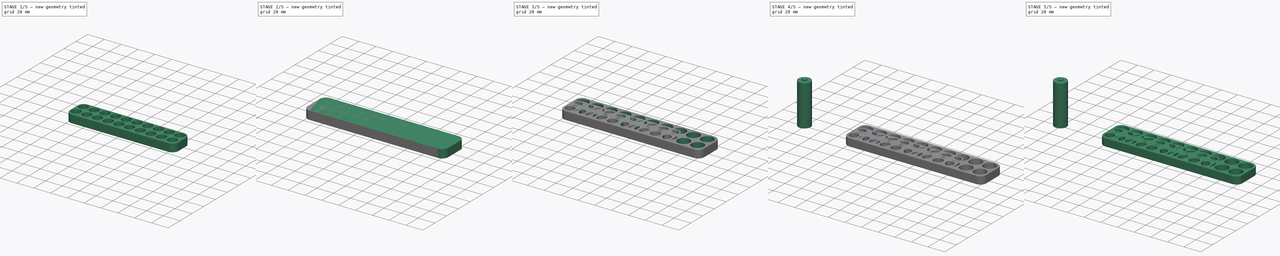
[diagram: build sequence overview — one tinted view per stage of 5, left to right]
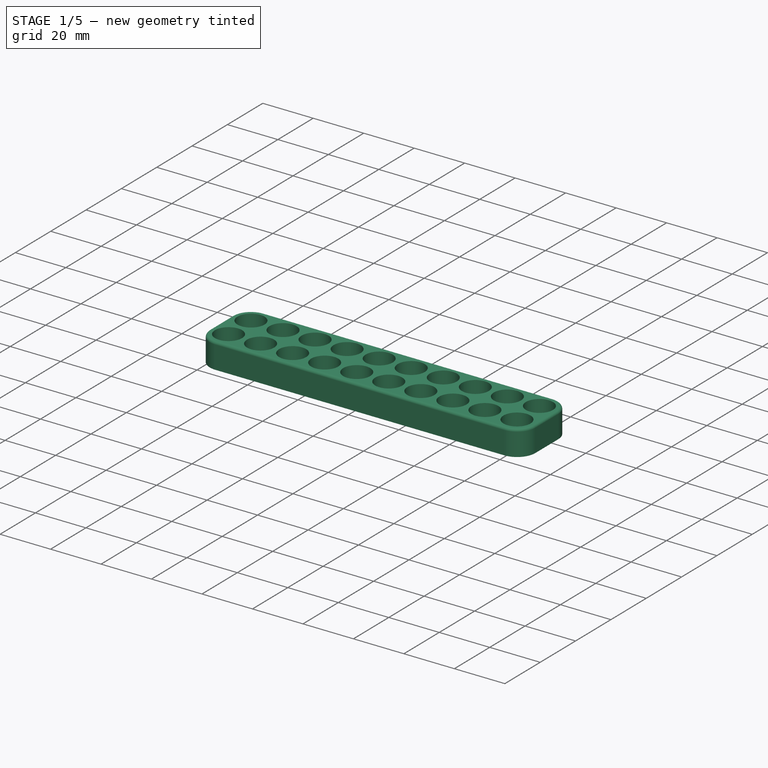
[diagram: stage 1 of 5 — iso view after this stage's code; geometry added in this stage tinted green]
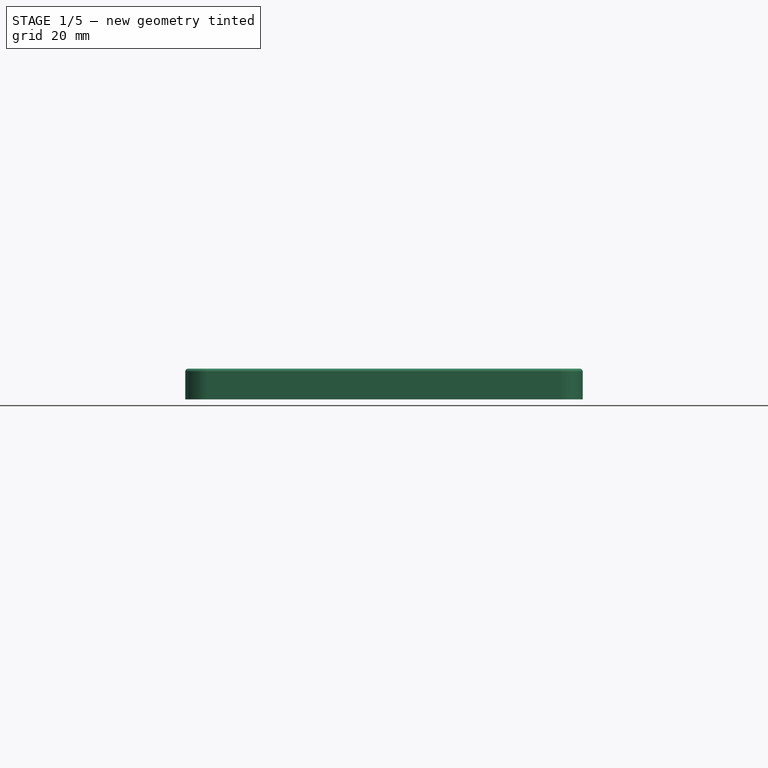
[diagram: stage 1 of 5 — front view after this stage's code; geometry added in this stage tinted green]
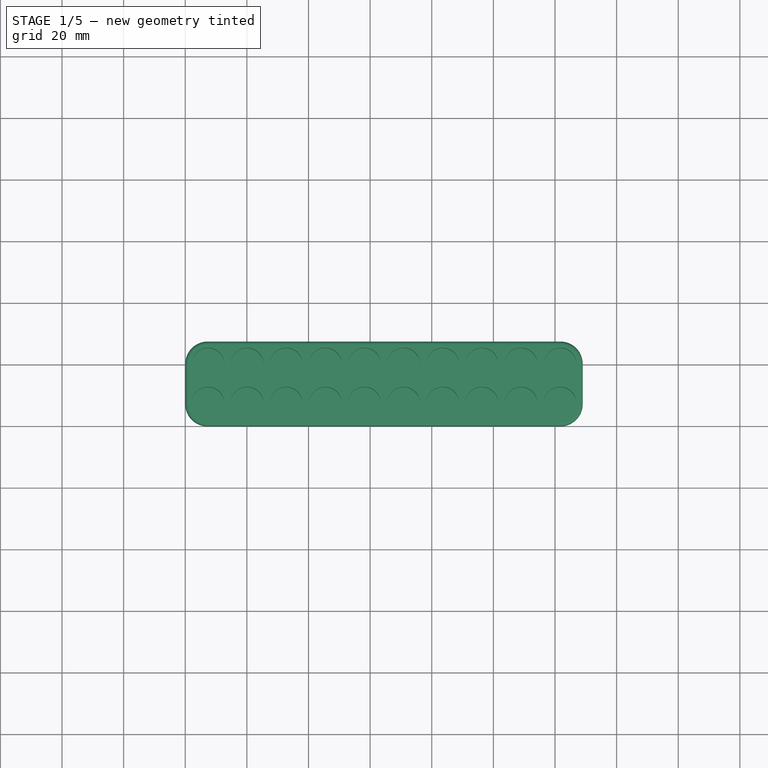
[diagram: stage 1 of 5 — top view after this stage's code; geometry added in this stage tinted green]
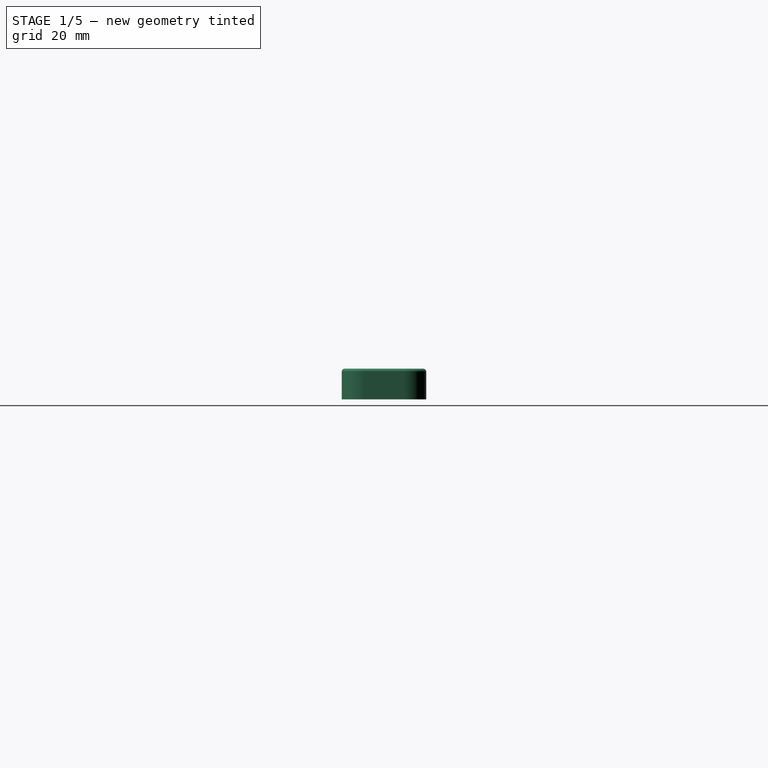
[diagram: stage 1 of 5 — right view after this stage's code; geometry added in this stage tinted green]
FCSTD DOCUMENT  (FreeCAD 0.21R33771 (Git))
Label: BatteryHolder
License: All rights reserved
LicenseURL: http://en.wikipedia.org/wiki/All_rights_reserved
objects: PartDesign::Fillet×9, Sketcher::SketchObject×6, PartDesign::Pad×4, PartDesign::Body×3, PartDesign::Pocket×2
note: 39 computed .brp shape members not serialized (recipe doc carries the construction recipe); baked Part::Feature solids carry a one-line shape summary decoded from their .brp

FEATURE [PartDesign::Body] Body001  label="AAHolder"
  Group = -> [Sketch,Sketch003,Pad002,Pocket,Fillet003,Fillet004,Fillet005]
  Origin = -> Origin001
  Tip = -> Fillet005
FEATURE [Sketcher::SketchObject] Sketch004
  FullyConstrained = false
  MapMode = 5
  sketch-geometry (14):
    g0: LineSegment StartX=0 StartY=20.15 StartZ=0 EndX=0 EndY=7.25 EndZ=0
    g1: LineSegment StartX=7.25 StartY=0 StartZ=0 EndX=121.75 EndY=0 EndZ=0
    g2: LineSegment StartX=129 StartY=7.25 StartZ=0 EndX=129 EndY=20.15 EndZ=0
    g3: LineSegment StartX=121.75 StartY=27.4 StartZ=0 EndX=7.25 EndY=27.4 EndZ=0
    g4: ArcOfCircle CenterX=7.25 CenterY=20.15 CenterZ=0 NormalX=0 NormalY=0 NormalZ=1 AngleXU=0 Radius=7.25 StartAngle=1.5708 EndAngle=3.14159
    g5: GeomPoint X=0 Y=27.4 Z=0
    g6: ArcOfCircle CenterX=7.25 CenterY=7.25 CenterZ=0 NormalX=0 NormalY=0 NormalZ=1 AngleXU=0 Radius=7.25 StartAngle=3.14159 EndAngle=4.71239
    g7: GeomPoint X=0 Y=0 Z=0
    g8: ArcOfCircle CenterX=121.75 CenterY=20.15 CenterZ=0 NormalX=0 NormalY=0 NormalZ=1 AngleXU=0 Radius=7.25 StartAngle=0 EndAngle=1.5708
    g9: GeomPoint X=129 Y=27.4 Z=0
    g10: ArcOfCircle CenterX=121.75 CenterY=7.25 CenterZ=0 NormalX=0 NormalY=0 NormalZ=1 AngleXU=0 Radius=7.25 StartAngle=4.71239 EndAngle=6.28319
    g11: GeomPoint X=129 Y=0 Z=0
    g12: LineSegment StartX=20.809 StartY=0 StartZ=0 EndX=20.809 EndY=27.4 EndZ=0
    g13: LineSegment StartX=0 StartY=21.2553 StartZ=0 EndX=129 EndY=21.2553 EndZ=0
  constraints (34):
    c: Vertical(g0)
    c: Vertical(g2)
    c: Horizontal(g1)
    c: Horizontal(g3)
    c: PointOnObject(g5,g3)
    c: PointOnObject(g5,g0)
    c: Tangent(g3,g4) = -1.5708
    c: Tangent(g0,g4) = -1.5708
    c: Radius(g4) = 7.25
    c: PointOnObject(g7,g0)
    c: PointOnObject(g7,g1)
    c: Tangent(g0,g6) = -1.5708
    c: Tangent(g1,g6) = -1.5708
    c: Radius(g6) = 7.25
    c: PointOnObject(g9,g3)
    c: PointOnObject(g9,g2)
    c: Tangent(g3,g8) = -1.5708
    c: Tangent(g2,g8) = -1.5708
    c: PointOnObject(g11,g2)
    c: PointOnObject(g11,g1)
    c: Tangent(g2,g10) = -1.5708
    c: Tangent(g1,g10) = -1.5708
    c: Radius(g8) = 7.25
    c: Radius(g10) = 7.25
    c: DistanceY(g-1,g1) = 0
    c: DistanceX(g-2,g0) = 0
    c: PointOnObject(g12,g1)
    c: PointOnObject(g12,g3)
    c: Vertical(g12)
    c: Distance(g12) = 27.4
    c: PointOnObject(g13,g0)
    c: PointOnObject(g13,g2)
    c: Horizontal(g13)
    c: Distance(g13) = 129
FEATURE [PartDesign::Pad] Pad003
  Direction = (0,0,1)
  Length = 10
  Length2 = 10
  Profile = -> Sketch004
  ReferenceAxis = -> Sketch004 [N_Axis]
  Type = 0
FEATURE [Sketcher::SketchObject] Sketch005
  ExternalGeometry = -> [Pad003]
  FullyConstrained = false
  MapMode = 5
  Placement = pos=(0,0,10) rot=(0,0,1;0rad)
  sketch-geometry (47):
    g0: Circle CenterX=7.35 CenterY=7.35 CenterZ=0 NormalX=0 NormalY=0 NormalZ=1 AngleXU=0 Radius=5.35
    g1: LineSegment StartX=12.7 StartY=7.35 StartZ=0 EndX=14.7 EndY=7.35 EndZ=0
    g2: Circle CenterX=20.05 CenterY=7.35 CenterZ=0 NormalX=0 NormalY=0 NormalZ=1 AngleXU=0 Radius=5.35
    g3: Circle CenterX=32.75 CenterY=7.35 CenterZ=0 NormalX=0 NormalY=0 NormalZ=1 AngleXU=0 Radius=5.35
    g4: Circle CenterX=45.45 CenterY=7.35 CenterZ=0 NormalX=0 NormalY=0 NormalZ=1 AngleXU=0 Radius=5.35
    g5: Circle CenterX=58.15 CenterY=7.35 CenterZ=0 NormalX=0 NormalY=0 NormalZ=1 AngleXU=0 Radius=5.35
    g6: Circle CenterX=70.85 CenterY=7.35 CenterZ=0 NormalX=0 NormalY=0 NormalZ=1 AngleXU=0 Radius=5.35
    g7: Circle CenterX=83.55 CenterY=7.35 CenterZ=0 NormalX=0 NormalY=0 NormalZ=1 AngleXU=0 Radius=5.35
    g8: LineSegment StartX=25.4 StartY=7.35 StartZ=0 EndX=27.4 EndY=7.35 EndZ=0
    g9: LineSegment StartX=38.1 StartY=7.35 StartZ=0 EndX=40.1 EndY=7.35 EndZ=0
    g10: LineSegment StartX=50.8 StartY=7.35 StartZ=0 EndX=52.8 EndY=7.35 EndZ=0
    g11: LineSegment StartX=63.5 StartY=7.35 StartZ=0 EndX=65.5 EndY=7.35 EndZ=0
    g12: LineSegment StartX=76.2 StartY=7.35 StartZ=0 EndX=78.2 EndY=7.35 EndZ=0
    g13: Circle CenterX=96.25 CenterY=7.35 CenterZ=0 NormalX=0 NormalY=0 NormalZ=1 AngleXU=0 Radius=5.35
    g14: Circle CenterX=108.95 CenterY=7.35 CenterZ=0 NormalX=0 NormalY=0 NormalZ=1 AngleXU=0 Radius=5.35
    g15: Circle CenterX=121.65 CenterY=7.35 CenterZ=0 NormalX=0 NormalY=0 NormalZ=1 AngleXU=0 Radius=5.35
    g16: LineSegment StartX=88.9 StartY=7.35 StartZ=0 EndX=90.9 EndY=7.35 EndZ=0
    g17: LineSegment StartX=101.6 StartY=7.35 StartZ=0 EndX=103.6 EndY=7.35 EndZ=0
    g18: LineSegment StartX=114.3 StartY=7.35 StartZ=0 EndX=116.3 EndY=7.35 EndZ=0
    g19: LineSegment StartX=2 StartY=7.34999 StartZ=0 EndX=0 EndY=7.34999 EndZ=0
    g20: LineSegment StartX=7.35 StartY=2 StartZ=0 EndX=7.35 EndY=0 EndZ=0
    g21: Circle CenterX=7.35 CenterY=20.05 CenterZ=0 NormalX=0 NormalY=0 NormalZ=1 AngleXU=0 Radius=5.35
    g22: LineSegment StartX=7.35 StartY=20.05 StartZ=0 EndX=20.05 EndY=20.05 EndZ=0
    g23: LineSegment StartX=20.05 StartY=20.05 StartZ=0 EndX=32.75 EndY=20.05 EndZ=0
    g24: LineSegment StartX=32.75 StartY=20.05 StartZ=0 EndX=45.45 EndY=20.05 EndZ=0
    g25: LineSegment StartX=45.45 StartY=20.05 StartZ=0 EndX=58.15 EndY=20.05 EndZ=0
    g26: LineSegment StartX=58.15 StartY=20.05 StartZ=0 EndX=70.85 EndY=20.05 EndZ=0
    g27: LineSegment StartX=70.85 StartY=20.05 StartZ=0 EndX=72.85 EndY=20.05 EndZ=0
    g28: LineSegment StartX=72.85 StartY=20.05 StartZ=0 EndX=83.55 EndY=20.05 EndZ=0
    g29: LineSegment StartX=83.55 StartY=20.05 StartZ=0 EndX=96.25 EndY=20.05 EndZ=0
    g30: LineSegment StartX=96.25 StartY=20.05 StartZ=0 EndX=130.237 EndY=20.05 EndZ=0
    g31: Circle CenterX=20.05 CenterY=20.05 CenterZ=0 NormalX=0 NormalY=0 NormalZ=1 AngleXU=0 Radius=5.35
    g32: Circle CenterX=32.75 CenterY=20.05 CenterZ=0 NormalX=0 NormalY=0 NormalZ=1 AngleXU=0 Radius=5.35
    g33: Circle CenterX=45.45 CenterY=20.05 CenterZ=0 NormalX=0 NormalY=0 NormalZ=1 AngleXU=0 Radius=5.35
    g34: Circle CenterX=58.15 CenterY=20.05 CenterZ=0 NormalX=0 NormalY=0 NormalZ=1 AngleXU=0 Radius=5.35
    g35: Circle CenterX=70.85 CenterY=20.05 CenterZ=0 NormalX=0 NormalY=0 NormalZ=1 AngleXU=0 Radius=5.35
    g36: Circle CenterX=83.55 CenterY=20.05 CenterZ=0 NormalX=0 NormalY=0 NormalZ=1 AngleXU=0 Radius=5.35
    g37: Circle CenterX=96.25 CenterY=20.05 CenterZ=0 NormalX=0 NormalY=0 NormalZ=1 AngleXU=0 Radius=5.35
    g38: LineSegment StartX=12.5099 StartY=18.6363 StartZ=0 EndX=12.5099 EndY=20.6363 EndZ=0
    g39: LineSegment StartX=7.35 StartY=14.7 StartZ=0 EndX=7.35 EndY=12.7 EndZ=0
    g40: LineSegment StartX=164.97 StartY=21.986 StartZ=0 EndX=166.97 EndY=21.986 EndZ=0
    g41: LineSegment StartX=166.97 StartY=21.986 StartZ=0 EndX=166.97 EndY=0 EndZ=0
    g42: LineSegment StartX=166.97 StartY=13.7 StartZ=0 EndX=0 EndY=13.7 EndZ=0
    g43: Circle CenterX=108.95 CenterY=20.05 CenterZ=0 NormalX=0 NormalY=0 NormalZ=1 AngleXU=0 Radius=5.35
    g44: Circle CenterX=121.65 CenterY=20.05 CenterZ=0 NormalX=0 NormalY=0 NormalZ=1 AngleXU=0 Radius=5.35
    g45: LineSegment StartX=0 StartY=27.4 StartZ=0 EndX=52.6348 EndY=27.4 EndZ=0
    g46: LineSegment StartX=129 StartY=-1.35583 StartZ=0 EndX=129 EndY=29.6442 EndZ=0
  constraints (142):
    c: Diameter(g0) = 10.7
    c: Horizontal(g1)
    c: PointOnObject(g1,g0)
    c: Diameter(g2) = 10.7
    c: Diameter(g3) = 10.7
    c: Diameter(g4) = 10.7
    c: Diameter(g5) = 10.7
    c: Diameter(g6) = 10.7
    c: Diameter(g7) = 10.7
    c: PointOnObject(g1,g2)
    c: PointOnObject(g8,g2)
    c: PointOnObject(g8,g3)
    c: PointOnObject(g9,g3)
    c: PointOnObject(g9,g4)
    c: PointOnObject(g10,g4)
    c: PointOnObject(g10,g5)
    c: PointOnObject(g11,g5)
    c: PointOnObject(g11,g6)
    c: PointOnObject(g12,g6)
    c: PointOnObject(g12,g7)
    c: Horizontal(g12)
    c: Horizontal(g11)
    c: Horizontal(g10)
    c: Horizontal(g9)
    c: Horizontal(g8)
    c: Horizontal(g7,g12)
    c: Horizontal(g12,g6)
    c: Horizontal(g6,g11)
    c: Horizontal(g11,g5)
    c: Horizontal(g5,g10)
    c: Horizontal(g10,g4)
    c: Horizontal(g4,g9)
    c: Horizontal(g9,g3)
    c: Horizontal(g3,g8)
    c: Horizontal(g8,g2)
    c: Horizontal(g1,g0)
    c: Horizontal(g0,g2)
    c: Distance(g8) = 2
    c: Distance(g9) = 2
    c: Distance(g10) = 2
    c: Distance(g11) = 2
    c: Distance(g12) = 2
    c: Distance(g1) = 2
    c: Diameter(g13) = 10.7
    c: Diameter(g14) = 10.7
    c: Diameter(g15) = 10.7
    c: PointOnObject(g16,g7)
    c: PointOnObject(g16,g13)
    c: PointOnObject(g17,g13)
    c: PointOnObject(g17,g14)
    c: PointOnObject(g18,g14)
    c: PointOnObject(g18,g15)
    c: Horizontal(g17)
    c: Horizontal(g16)
    c: Horizontal(g16,g7)
    c: Horizontal(g13,g16)
    c: Horizontal(g16,g17)
    c: Horizontal(g17,g14)
    c: Horizontal(g14,g18)
    c: Horizontal(g18,g15)
    c: Horizontal(g18)
    c: Distance(g16) = 2
    c: Distance(g17) = 2
    c: Distance(g18) = 2
    c: Horizontal(g19)
    c: PointOnObject(g19,g0)
    c: Vertical(g20)
    c: PointOnObject(g20,g0)
    c: Distance(g20) = 2
    c: PointOnObject(g20,g-3)
    c: PointOnObject(g19,g-2)
    c: Distance(g19) = 2
    c: Vertical(g20,g0)
    c: Diameter(g21) = 10.7
    c: Coincident(g22,g21)
    c: Coincident(g22,g23)
    c: Horizontal(g22)
    c: Coincident(g23,g24)
    c: Horizontal(g23)
    c: Coincident(g24,g25)
    c: Horizontal(g24)
    c: Coincident(g25,g26)
    c: Horizontal(g25)
    c: Coincident(g26,g27)
    c: Horizontal(g26)
    c: Coincident(g27,g28)
    c: Horizontal(g27)
    c: Coincident(g28,g29)
    c: Horizontal(g28)
    c: Coincident(g29,g30)
    c: Horizontal(g29)
    c: Horizontal(g30)
    c: Distance(g27) = 2
    c: Diameter(g31) = 10.7
    c: Coincident(g31,g22)
    c: Diameter(g32) = 10.7
    c: Coincident(g32,g23)
    c: Diameter(g33) = 10.7
    c: Coincident(g33,g24)
    c: Diameter(g34) = 10.7
    c: Coincident(g34,g25)
    c: Diameter(g35) = 10.7
    c: Coincident(g35,g26)
    c: Diameter(g36) = 10.7
    c: Coincident(g36,g28)
    c: Diameter(g37) = 10.7
    c: Coincident(g37,g29)
    c: Vertical(g38)
    c: Vertical(g39)
    c: PointOnObject(g39,g21)
    c: PointOnObject(g39,g0)
    c: PointOnObject(g38,g21)
    c: Distance(g38) = 2
    c: Horizontal(g40)
    c: Distance(g40) = 2
    c: Coincident(g41,g40)
    c: PointOnObject(g41,g-3)
    c: Vertical(g41)
    c: PointOnObject(g42,g41)
    c: Symmetric(g-4,g-4,g42)
    c: Horizontal(g42)
    c: Distance(g21,g31) = 2
    c: Distance(g31,g32) = 2
    c: Distance(g32,g33) = 2
    c: Distance(g33,g34) = 2
    c: Distance(g34,g35) = 2
    c: Distance(g35,g36) = 2
    c: Distance(g36,g37) = 2
    c: Vertical(g21,g0)
    c: Distance(g21,g0) = 2
    c: Diameter(g43) = 10.7
    c: Diameter(g44) = 10.7
    c: Horizontal(g43,g29)
    c: Horizontal(g44,g43)
    c: Distance(g37,g43) = 2
    c: Distance(g44,g43) = 2
    c: Horizontal(g45)
    c: PointOnObject(g45,g-4)
    c: Distance(g21,g45) = 2
    c: Distance(g46) = 31
    c: Vertical(g46)
    c: Distance(g44,g46) = 2
FEATURE [PartDesign::Pocket] Pocket001
  BaseFeature = -> Pad003
  Direction = (0,0,-1)
  Length = 9
  Length2 = 5
  Profile = -> Sketch005
  ReferenceAxis = -> Sketch005 [N_Axis]
  Type = 0
FEATURE [PartDesign::Fillet] Fillet006
  Base = -> Pocket001 [Edge17,Edge10,Edge4,Edge7,Edge16,Edge18,Edge20,Edge19]
  BaseFeature = -> Pocket001
  Radius = 1
  SupportTransform = false
  UseAllEdges = false
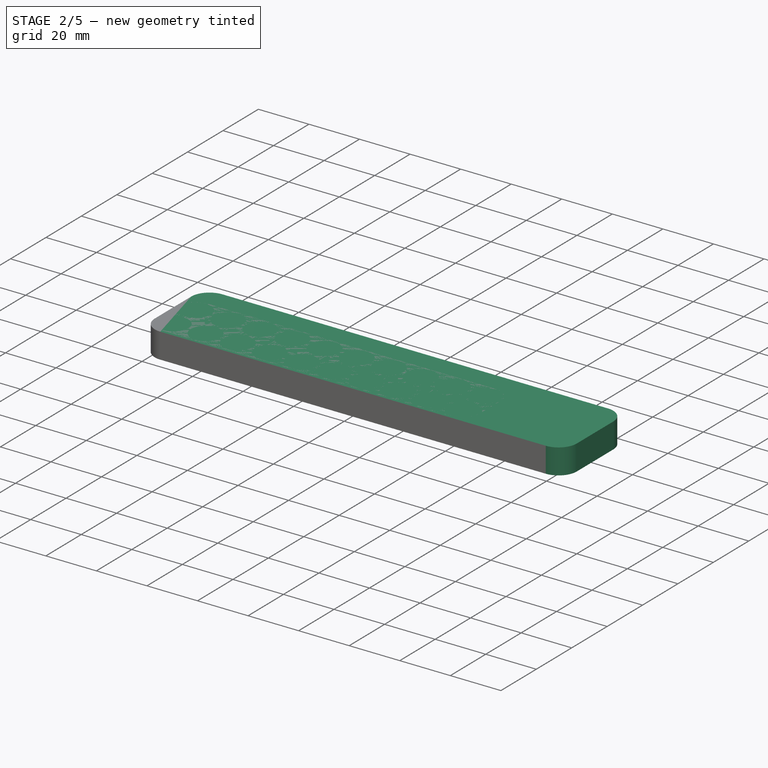
[diagram: stage 2 of 5 — iso view after this stage's code; geometry added in this stage tinted green]
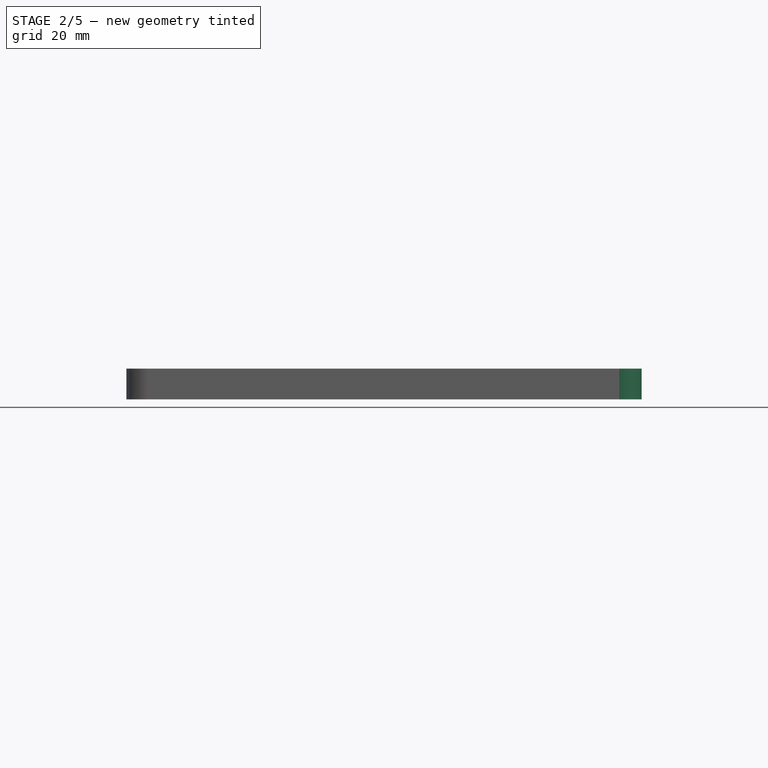
[diagram: stage 2 of 5 — front view after this stage's code; geometry added in this stage tinted green]
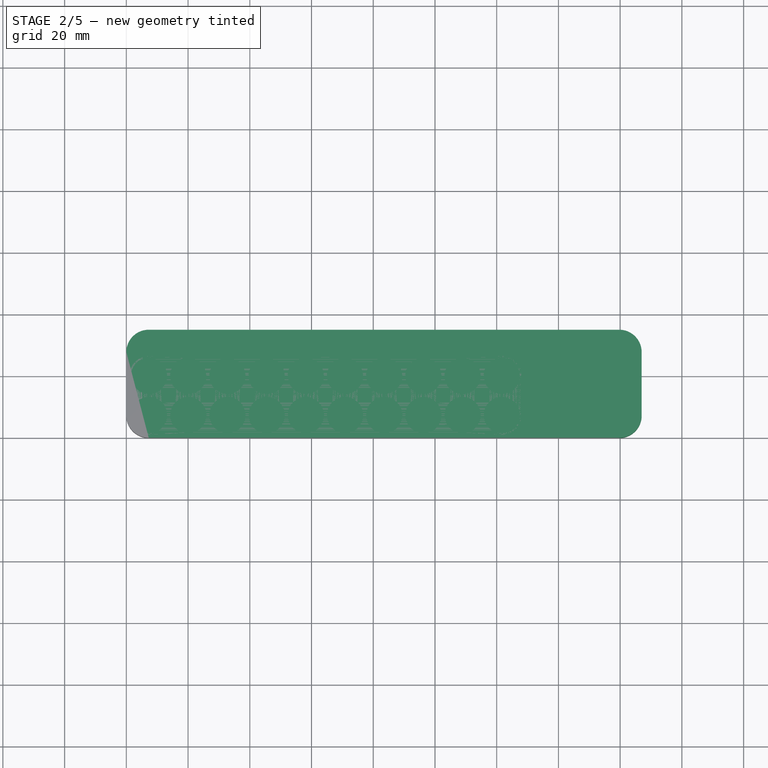
[diagram: stage 2 of 5 — top view after this stage's code; geometry added in this stage tinted green]
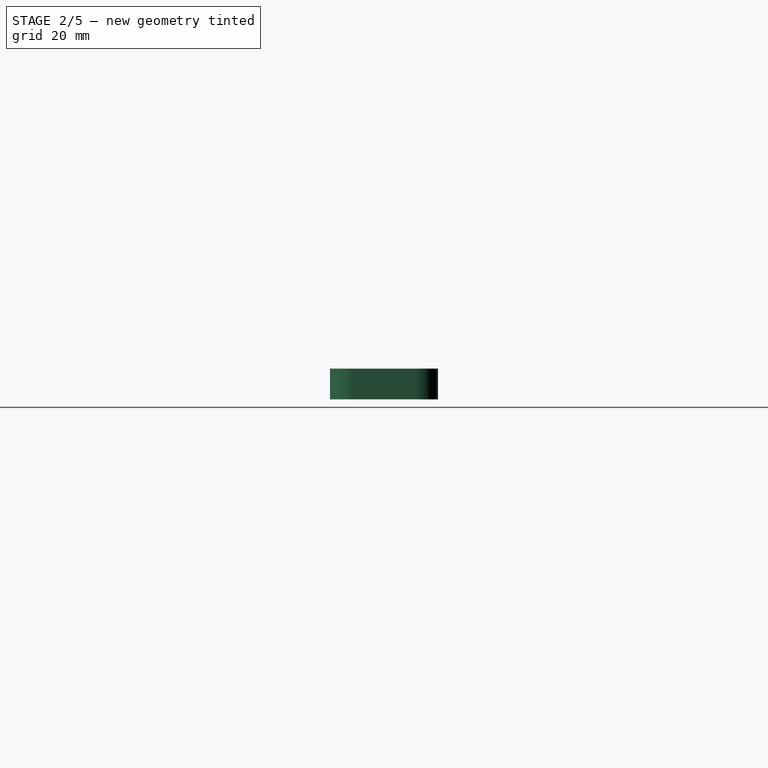
[diagram: stage 2 of 5 — right view after this stage's code; geometry added in this stage tinted green]
FEATURE [PartDesign::Body] Body  label="AABattery"
  Group = -> [Sketch001,Pad,Sketch002,Pad001,Fillet,Fillet001,Fillet002]
  Origin = -> Origin
  Tip = -> Fillet002
FEATURE [Sketcher::SketchObject] Sketch
  FullyConstrained = false
  MapMode = 5
  sketch-geometry (14):
    g0: LineSegment StartX=0 StartY=27.75 StartZ=0 EndX=0 EndY=7.25 EndZ=0
    g1: LineSegment StartX=7.25 StartY=2.7e-15 StartZ=0 EndX=159.72 EndY=2.7e-15 EndZ=0
    g2: LineSegment StartX=166.97 StartY=7.25 StartZ=0 EndX=166.97 EndY=27.75 EndZ=0
    g3: LineSegment StartX=159.72 StartY=35 StartZ=0 EndX=7.25 EndY=35 EndZ=0
    g4: ArcOfCircle CenterX=7.25 CenterY=27.75 CenterZ=0 NormalX=0 NormalY=0 NormalZ=1 AngleXU=0 Radius=7.25 StartAngle=1.5708 EndAngle=3.14159
    g5: GeomPoint X=0 Y=35 Z=0
    g6: ArcOfCircle CenterX=7.25 CenterY=7.25 CenterZ=0 NormalX=0 NormalY=0 NormalZ=1 AngleXU=0 Radius=7.25 StartAngle=3.14159 EndAngle=4.71239
    g7: GeomPoint X=0 Y=0 Z=0
    g8: ArcOfCircle CenterX=159.72 CenterY=27.75 CenterZ=0 NormalX=0 NormalY=0 NormalZ=1 AngleXU=0 Radius=7.25 StartAngle=0 EndAngle=1.5708
    g9: GeomPoint X=166.97 Y=35 Z=0
    g10: ArcOfCircle CenterX=159.72 CenterY=7.25 CenterZ=0 NormalX=0 NormalY=0 NormalZ=1 AngleXU=0 Radius=7.25 StartAngle=4.71239 EndAngle=6.28319
    g11: GeomPoint X=166.97 Y=0 Z=0
    g12: LineSegment StartX=20.809 StartY=0 StartZ=0 EndX=20.809 EndY=35 EndZ=0
    g13: LineSegment StartX=0 StartY=21.2553 StartZ=0 EndX=166.97 EndY=21.2553 EndZ=0
  constraints (34):
    c: Vertical(g0)
    c: Vertical(g2)
    c: Horizontal(g1)
    c: Horizontal(g3)
    c: PointOnObject(g5,g3)
    c: PointOnObject(g5,g0)
    c: Tangent(g3,g4) = -1.5708
    c: Tangent(g0,g4) = -1.5708
    c: Radius(g4) = 7.25
    c: PointOnObject(g7,g0)
    c: PointOnObject(g7,g1)
    c: Tangent(g0,g6) = -1.5708
    c: Tangent(g1,g6) = -1.5708
    c: Radius(g6) = 7.25
    c: PointOnObject(g9,g3)
    c: PointOnObject(g9,g2)
    c: Tangent(g3,g8) = -1.5708
    c: Tangent(g2,g8) = -1.5708
    c: PointOnObject(g11,g2)
    c: PointOnObject(g11,g1)
    c: Tangent(g2,g10) = -1.5708
    c: Tangent(g1,g10) = -1.5708
    c: Radius(g8) = 7.25
    c: Radius(g10) = 7.25
    c: DistanceY(g-1,g1) = 0
    c: DistanceX(g-2,g0) = 0
    c: PointOnObject(g12,g1)
    c: PointOnObject(g12,g3)
    c: Vertical(g12)
    c: Distance(g12) = 35
    c: PointOnObject(g13,g0)
    c: PointOnObject(g13,g2)
    c: Horizontal(g13)
    c: Distance(g13) = 166.97
FEATURE [PartDesign::Pad] Pad002
  Direction = (0,0,1)
  Length = 10
  Length2 = 10
  Profile = -> Sketch
  ReferenceAxis = -> Sketch [N_Axis]
  Type = 0
FEATURE [PartDesign::Fillet] Fillet007
  Base = -> Fillet006 [Edge39,Edge29,Edge30,Edge40,Edge41,Edge31,Edge32,Edge42,Edge43,Edge33,Edge34,Edge44,Edge45,Edge35,Edge36,Edge46,Edge47,Edge37,Edge48,Edge38]
  BaseFeature = -> Fillet006
  Radius = 0.5
  SupportTransform = false
  UseAllEdges = false
FEATURE [PartDesign::Fillet] Fillet008
  Base = -> Fillet007 [Face59]
  BaseFeature = -> Fillet007
  Radius = 1
  SupportTransform = false
  UseAllEdges = false
FEATURE [PartDesign::Body] Body002  label="AAAHolder"
  Group = -> [Sketch004,Sketch005,Pad003,Pocket001,Fillet006,Fillet007,Fillet008]
  Origin = -> Origin002
  Tip = -> Fillet008
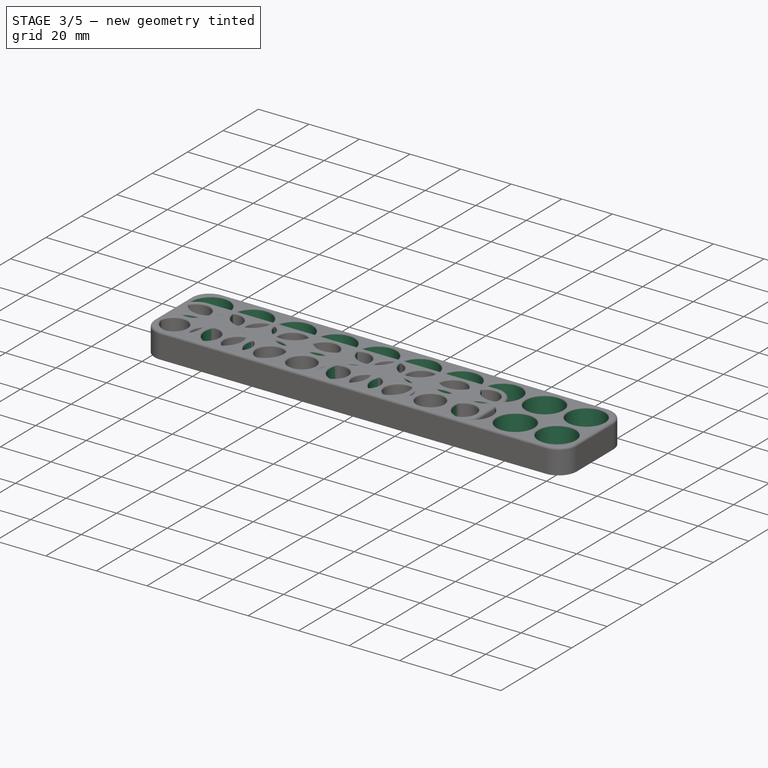
[diagram: stage 3 of 5 — iso view after this stage's code; geometry added in this stage tinted green]
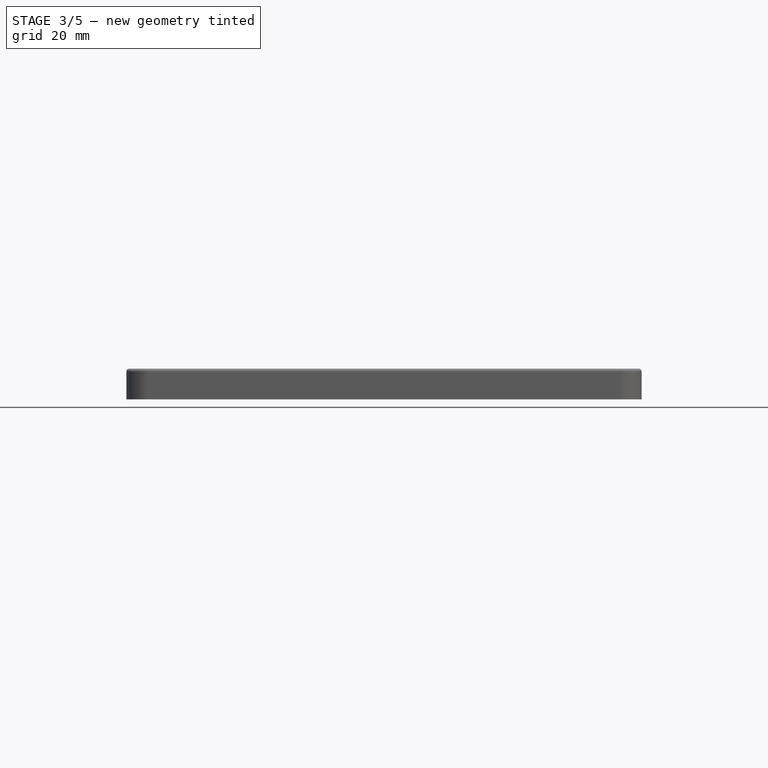
[diagram: stage 3 of 5 — front view after this stage's code; geometry added in this stage tinted green]
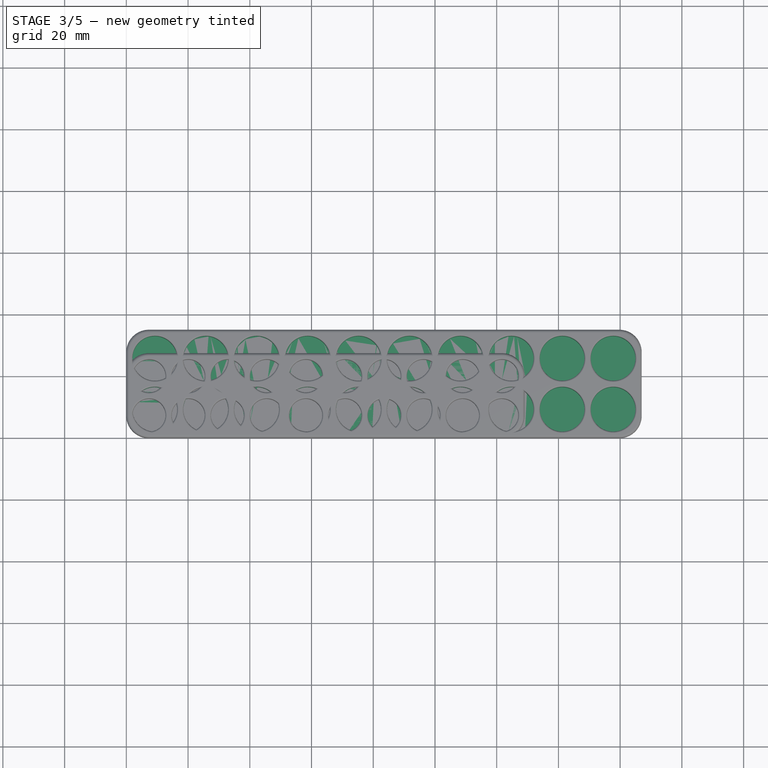
[diagram: stage 3 of 5 — top view after this stage's code; geometry added in this stage tinted green]
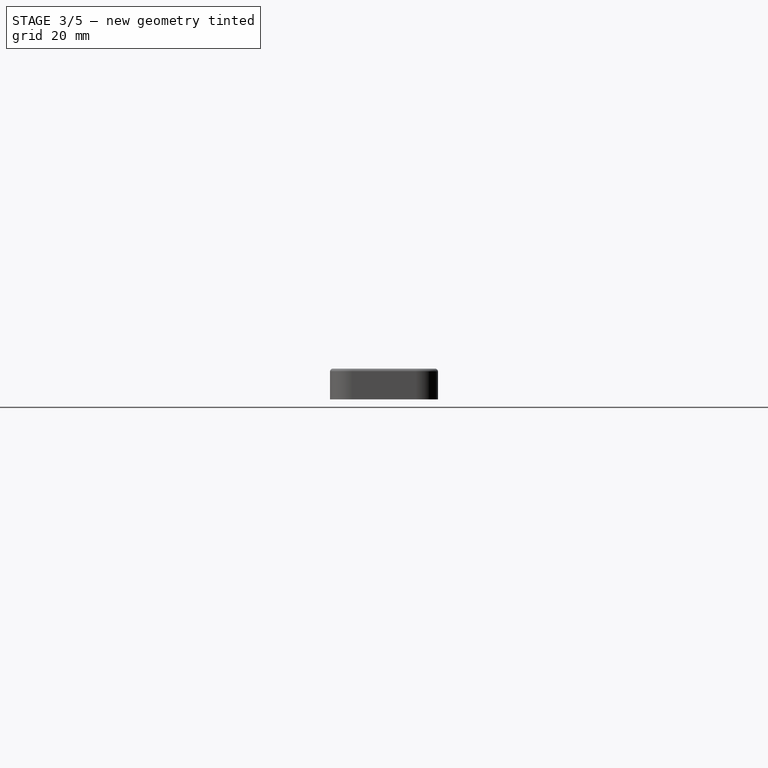
[diagram: stage 3 of 5 — right view after this stage's code; geometry added in this stage tinted green]
FEATURE [Sketcher::SketchObject] Sketch003
  ExternalGeometry = -> [Pad002]
  FullyConstrained = false
  MapMode = 5
  Placement = pos=(0,0,10) rot=(0,0,1;0rad)
  sketch-geometry (45):
    g0: Circle CenterX=9.22024 CenterY=9.25 CenterZ=0 NormalX=0 NormalY=0 NormalZ=1 AngleXU=0 Radius=7.25
    g1: LineSegment StartX=16.4702 StartY=9.25 StartZ=0 EndX=18.4702 EndY=9.25 EndZ=0
    g2: Circle CenterX=25.7202 CenterY=9.25 CenterZ=0 NormalX=0 NormalY=0 NormalZ=1 AngleXU=0 Radius=7.25
    g3: Circle CenterX=42.2202 CenterY=9.25 CenterZ=0 NormalX=0 NormalY=0 NormalZ=1 AngleXU=0 Radius=7.25
    g4: Circle CenterX=58.7202 CenterY=9.25 CenterZ=0 NormalX=0 NormalY=0 NormalZ=1 AngleXU=0 Radius=7.25
    g5: Circle CenterX=75.2202 CenterY=9.25 CenterZ=0 NormalX=0 NormalY=0 NormalZ=1 AngleXU=0 Radius=7.25
    g6: Circle CenterX=91.7202 CenterY=9.25 CenterZ=0 NormalX=0 NormalY=0 NormalZ=1 AngleXU=0 Radius=7.25
    g7: Circle CenterX=108.22 CenterY=9.25 CenterZ=0 NormalX=0 NormalY=0 NormalZ=1 AngleXU=0 Radius=7.25
    g8: LineSegment StartX=32.9702 StartY=9.25 StartZ=0 EndX=34.9702 EndY=9.25 EndZ=0
    g9: LineSegment StartX=49.4702 StartY=9.25 StartZ=0 EndX=51.4702 EndY=9.25 EndZ=0
    g10: LineSegment StartX=65.9702 StartY=9.25 StartZ=0 EndX=67.9702 EndY=9.25 EndZ=0
    g11: LineSegment StartX=82.4702 StartY=9.25 StartZ=0 EndX=84.4702 EndY=9.25 EndZ=0
    g12: LineSegment StartX=98.9702 StartY=9.25 StartZ=0 EndX=100.97 EndY=9.25 EndZ=0
    g13: Circle CenterX=124.72 CenterY=9.25 CenterZ=0 NormalX=0 NormalY=0 NormalZ=1 AngleXU=0 Radius=7.25
    g14: Circle CenterX=141.22 CenterY=9.25 CenterZ=0 NormalX=0 NormalY=0 NormalZ=1 AngleXU=0 Radius=7.25
    g15: Circle CenterX=157.72 CenterY=9.25 CenterZ=0 NormalX=0 NormalY=0 NormalZ=1 AngleXU=0 Radius=7.25
    g16: LineSegment StartX=115.47 StartY=9.25 StartZ=0 EndX=117.47 EndY=9.25 EndZ=0
    g17: LineSegment StartX=131.97 StartY=9.25 StartZ=0 EndX=133.97 EndY=9.25 EndZ=0
    g18: LineSegment StartX=148.47 StartY=9.25 StartZ=0 EndX=150.47 EndY=9.25 EndZ=0
    g19: LineSegment StartX=2 StartY=8.5938 StartZ=0 EndX=0 EndY=8.5938 EndZ=0
    g20: LineSegment StartX=9.22024 StartY=2 StartZ=0 EndX=9.22024 EndY=0 EndZ=0
    g21: Circle CenterX=9.22 CenterY=25.75 CenterZ=0 NormalX=0 NormalY=0 NormalZ=1 AngleXU=0 Radius=7.25
    g22: LineSegment StartX=9.22 StartY=25.75 StartZ=0 EndX=25.72 EndY=25.75 EndZ=0
    g23: LineSegment StartX=25.72 StartY=25.75 StartZ=0 EndX=42.22 EndY=25.75 EndZ=0
    g24: LineSegment StartX=42.22 StartY=25.75 StartZ=0 EndX=58.72 EndY=25.75 EndZ=0
    g25: LineSegment StartX=58.72 StartY=25.75 StartZ=0 EndX=75.22 EndY=25.75 EndZ=0
    g26: LineSegment StartX=75.22 StartY=25.75 StartZ=0 EndX=91.72 EndY=25.75 EndZ=0
    g27: LineSegment StartX=91.72 StartY=25.75 StartZ=0 EndX=108.22 EndY=25.75 EndZ=0
    g28: LineSegment StartX=108.22 StartY=25.75 StartZ=0 EndX=124.72 EndY=25.75 EndZ=0
    g29: LineSegment StartX=124.72 StartY=25.75 StartZ=0 EndX=141.22 EndY=25.75 EndZ=0
    g30: LineSegment StartX=141.22 StartY=25.75 StartZ=0 EndX=157.72 EndY=25.75 EndZ=0
    g31: Circle CenterX=25.72 CenterY=25.75 CenterZ=0 NormalX=0 NormalY=0 NormalZ=1 AngleXU=0 Radius=7.25
    g32: Circle CenterX=42.22 CenterY=25.75 CenterZ=0 NormalX=0 NormalY=0 NormalZ=1 AngleXU=0 Radius=7.25
    g33: Circle CenterX=58.72 CenterY=25.75 CenterZ=0 NormalX=0 NormalY=0 NormalZ=1 AngleXU=0 Radius=7.25
    g34: Circle CenterX=75.22 CenterY=25.75 CenterZ=0 NormalX=0 NormalY=0 NormalZ=1 AngleXU=0 Radius=7.25
    g35: Circle CenterX=91.72 CenterY=25.75 CenterZ=0 NormalX=0 NormalY=0 NormalZ=1 AngleXU=0 Radius=7.25
    g36: Circle CenterX=108.22 CenterY=25.75 CenterZ=0 NormalX=0 NormalY=0 NormalZ=1 AngleXU=0 Radius=7.25
    g37: Circle CenterX=124.72 CenterY=25.75 CenterZ=0 NormalX=0 NormalY=0 NormalZ=1 AngleXU=0 Radius=7.25
    g38: Circle CenterX=141.22 CenterY=25.75 CenterZ=0 NormalX=0 NormalY=0 NormalZ=1 AngleXU=0 Radius=7.25
    g39: Circle CenterX=157.72 CenterY=25.75 CenterZ=0 NormalX=0 NormalY=0 NormalZ=1 AngleXU=0 Radius=7.25
    g40: LineSegment StartX=9.22045 StartY=33 StartZ=0 EndX=9.22045 EndY=35 EndZ=0
    g41: LineSegment StartX=9.22045 StartY=18.5 StartZ=0 EndX=9.22045 EndY=16.5 EndZ=0
    g42: LineSegment StartX=164.97 StartY=25.75 StartZ=0 EndX=166.97 EndY=25.75 EndZ=0
    g43: LineSegment StartX=166.97 StartY=25.75 StartZ=0 EndX=166.97 EndY=0 EndZ=0
    g44: LineSegment StartX=166.97 StartY=17.5 StartZ=0 EndX=0 EndY=17.5 EndZ=0
  constraints (136):
    c: Diameter(g0) = 14.5
    c: Horizontal(g1)
    c: PointOnObject(g1,g0)
    c: Diameter(g2) = 14.5
    c: Diameter(g3) = 14.5
    c: Diameter(g4) = 14.5
    c: Diameter(g5) = 14.5
    c: Diameter(g6) = 14.5
    c: Diameter(g7) = 14.5
    c: PointOnObject(g1,g2)
    c: PointOnObject(g8,g2)
    c: PointOnObject(g8,g3)
    c: PointOnObject(g9,g3)
    c: PointOnObject(g9,g4)
    c: PointOnObject(g10,g4)
    c: PointOnObject(g10,g5)
    c: PointOnObject(g11,g5)
    c: PointOnObject(g11,g6)
    c: PointOnObject(g12,g6)
    c: PointOnObject(g12,g7)
    c: Horizontal(g12)
    c: Horizontal(g11)
    c: Horizontal(g10)
    c: Horizontal(g9)
    c: Horizontal(g8)
    c: Horizontal(g7,g12)
    c: Horizontal(g12,g6)
    c: Horizontal(g6,g11)
    c: Horizontal(g11,g5)
    c: Horizontal(g5,g10)
    c: Horizontal(g10,g4)
    c: Horizontal(g4,g9)
    c: Horizontal(g9,g3)
    c: Horizontal(g3,g8)
    c: Horizontal(g8,g2)
    c: Horizontal(g1,g0)
    c: Horizontal(g0,g2)
    c: Distance(g8) = 2
    c: Distance(g9) = 2
    c: Distance(g10) = 2
    c: Distance(g11) = 2
    c: Distance(g12) = 2
    c: Distance(g1) = 2
    c: Diameter(g13) = 14.5
    c: Diameter(g14) = 14.5
    c: Diameter(g15) = 14.5
    c: PointOnObject(g16,g7)
    c: PointOnObject(g16,g13)
    c: PointOnObject(g17,g13)
    c: PointOnObject(g17,g14)
    c: PointOnObject(g18,g14)
    c: PointOnObject(g18,g15)
    c: Horizontal(g17)
    c: Horizontal(g16)
    c: Horizontal(g16,g7)
    c: Horizontal(g13,g16)
    c: Horizontal(g16,g17)
    c: Horizontal(g17,g14)
    c: Horizontal(g14,g18)
    c: Horizontal(g18,g15)
    c: Horizontal(g18)
    c: Distance(g16) = 2
    c: Distance(g17) = 2
    c: Distance(g18) = 2
    c: Horizontal(g19)
    c: PointOnObject(g19,g0)
    c: Vertical(g20)
    c: PointOnObject(g20,g0)
    c: Distance(g20) = 2
    c: PointOnObject(g20,g-3)
    c: PointOnObject(g19,g-2)
    c: Distance(g19) = 2
    c: Vertical(g20,g0)
    c: Diameter(g21) = 14.5
    c: Coincident(g22,g21)
    c: Coincident(g22,g23)
    c: Horizontal(g22)
    c: Coincident(g23,g24)
    c: Horizontal(g23)
    c: Coincident(g24,g25)
    c: Horizontal(g24)
    c: Coincident(g25,g26)
    c: Horizontal(g25)
    c: Coincident(g26,g27)
    c: Horizontal(g26)
    c: Coincident(g27,g28)
    c: Horizontal(g27)
    c: Coincident(g28,g29)
    c: Horizontal(g28)
    c: Coincident(g29,g30)
    c: Horizontal(g29)
    c: Horizontal(g30)
    c: Distance(g22) = 16.5
    c: Distance(g23) = 16.5
    c: Distance(g24) = 16.5
    c: Distance(g25) = 16.5
    c: Distance(g26) = 16.5
    c: Distance(g27) = 16.5
    c: Distance(g28) = 16.5
    c: Distance(g29) = 16.5
    c: Distance(g30) = 16.5
    c: Diameter(g31) = 14.5
    c: Coincident(g31,g22)
    c: Diameter(g32) = 14.5
    c: Coincident(g32,g23)
    c: Diameter(g33) = 14.5
    c: Coincident(g33,g24)
    c: Diameter(g34) = 14.5
    c: Coincident(g34,g25)
    c: Diameter(g35) = 14.5
    c: Coincident(g35,g26)
    c: Diameter(g36) = 14.5
    c: Coincident(g36,g27)
    c: Diameter(g37) = 14.5
    c: Coincident(g37,g28)
    c: Diameter(g38) = 14.5
    c: Coincident(g38,g29)
    c: Diameter(g39) = 14.5
    c: Coincident(g39,g30)
    c: Vertical(g40)
    c: Vertical(g41)
    c: PointOnObject(g41,g21)
    c: PointOnObject(g41,g0)
    c: Distance(g41) = 2
    c: PointOnObject(g40,g21)
    c: Distance(g40) = 2
    c: Horizontal(g42)
    c: PointOnObject(g42,g39)
    c: Distance(g42) = 2
    c: Coincident(g43,g42)
    c: PointOnObject(g43,g-3)
    c: Vertical(g43)
    c: PointOnObject(g44,g43)
    c: Symmetric(g-4,g-4,g44)
    c: Horizontal(g44)
    c: Distance(g44) = 166.97
FEATURE [PartDesign::Pocket] Pocket
  BaseFeature = -> Pad002
  Direction = (0,0,-1)
  Length = 9
  Length2 = 5
  Profile = -> Sketch003
  ReferenceAxis = -> Sketch003 [N_Axis]
  Type = 0
FEATURE [PartDesign::Fillet] Fillet003
  Base = -> Pocket [Edge17,Edge10,Edge4,Edge7,Edge16,Edge18,Edge20,Edge19]
  BaseFeature = -> Pocket
  Radius = 1
  SupportTransform = false
  UseAllEdges = false
FEATURE [PartDesign::Fillet] Fillet004
  Base = -> Fillet003 [Edge39,Edge29,Edge30,Edge40,Edge41,Edge31,Edge32,Edge42,Edge43,Edge33,Edge34,Edge44,Edge45,Edge35,Edge36,Edge46,Edge47,Edge37,Edge48,Edge38]
  BaseFeature = -> Fillet003
  Radius = 0.5
  SupportTransform = false
  UseAllEdges = false
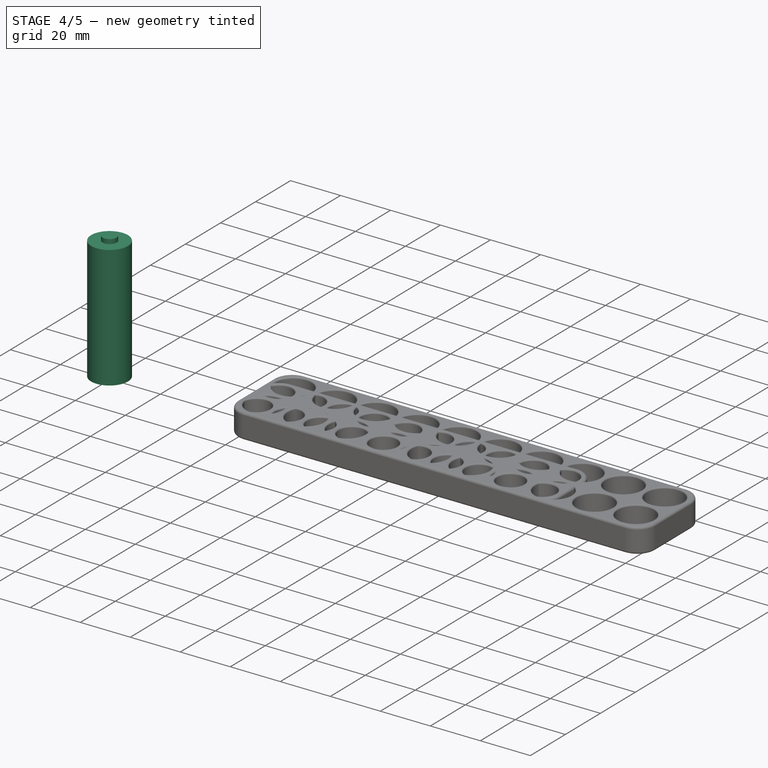
[diagram: stage 4 of 5 — iso view after this stage's code; geometry added in this stage tinted green]
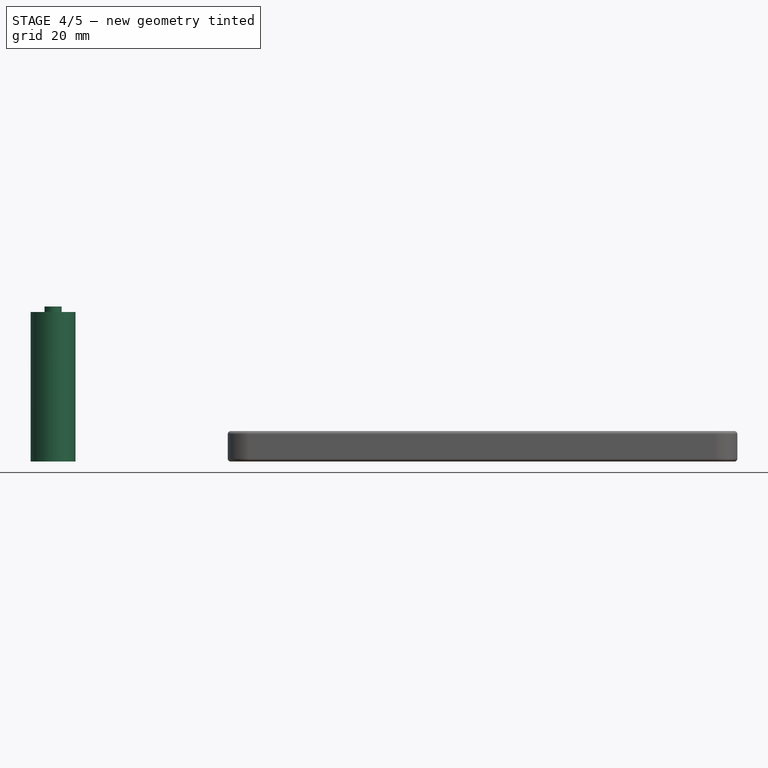
[diagram: stage 4 of 5 — front view after this stage's code; geometry added in this stage tinted green]
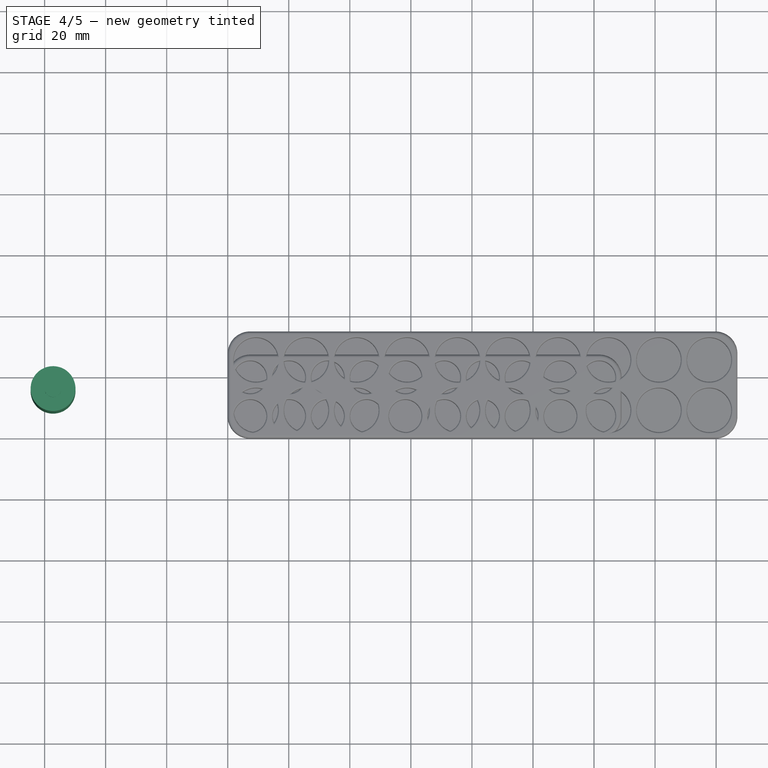
[diagram: stage 4 of 5 — top view after this stage's code; geometry added in this stage tinted green]
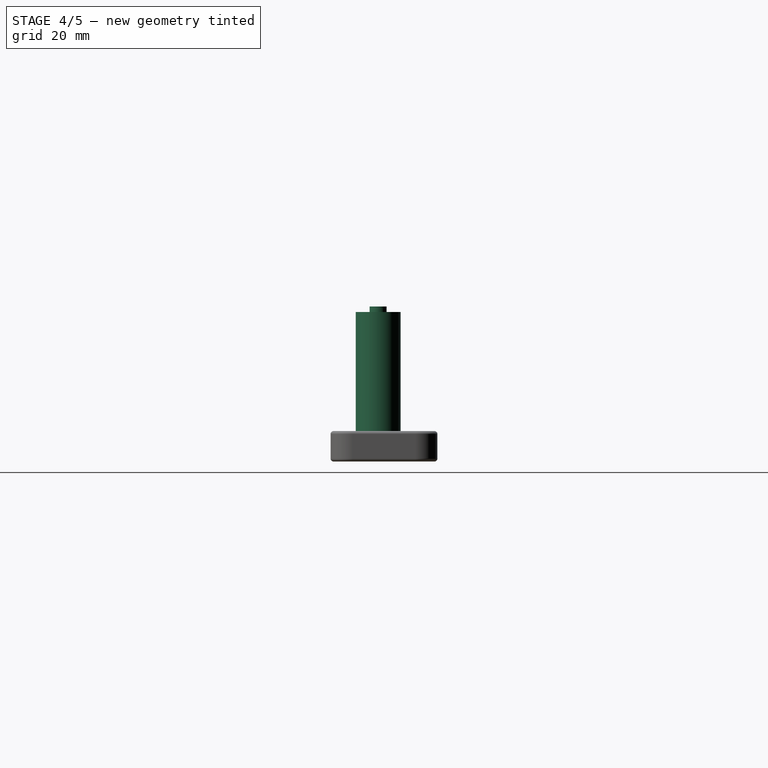
[diagram: stage 4 of 5 — right view after this stage's code; geometry added in this stage tinted green]
FEATURE [Sketcher::SketchObject] Sketch001
  FullyConstrained = false
  MapMode = 5
  sketch-geometry (1):
    g0: Circle CenterX=-57.2304 CenterY=15.5808 CenterZ=0 NormalX=0 NormalY=0 NormalZ=1 AngleXU=0 Radius=7.35
  constraints (1):
    c: Diameter(g0) = 14.7
FEATURE [PartDesign::Pad] Pad
  Direction = (0,0,1)
  Length = 49
  Length2 = 10
  Profile = -> Sketch001
  ReferenceAxis = -> Sketch001 [N_Axis]
  Type = 0
FEATURE [Sketcher::SketchObject] Sketch002
  ExternalGeometry = -> [Pad]
  FullyConstrained = true
  MapMode = 5
  Placement = pos=(0,0,49) rot=(0,0,1;0rad)
  sketch-geometry (1):
    g0: Circle CenterX=-57.2304 CenterY=15.5808 CenterZ=0 NormalX=0 NormalY=0 NormalZ=1 AngleXU=0 Radius=2.8
  constraints (2):
    c: Diameter(g0) = 5.6
    c: Coincident(g0,g-3)
FEATURE [PartDesign::Pad] Pad001
  BaseFeature = -> Pad
  Direction = (0,0,1)
  Length = 1.8
  Length2 = 10
  Profile = -> Sketch002
  ReferenceAxis = -> Sketch002 [N_Axis]
  Type = 0
FEATURE [PartDesign::Fillet] Fillet005
  Base = -> Fillet004 [Face59]
  BaseFeature = -> Fillet004
  Radius = 1
  SupportTransform = false
  UseAllEdges = false
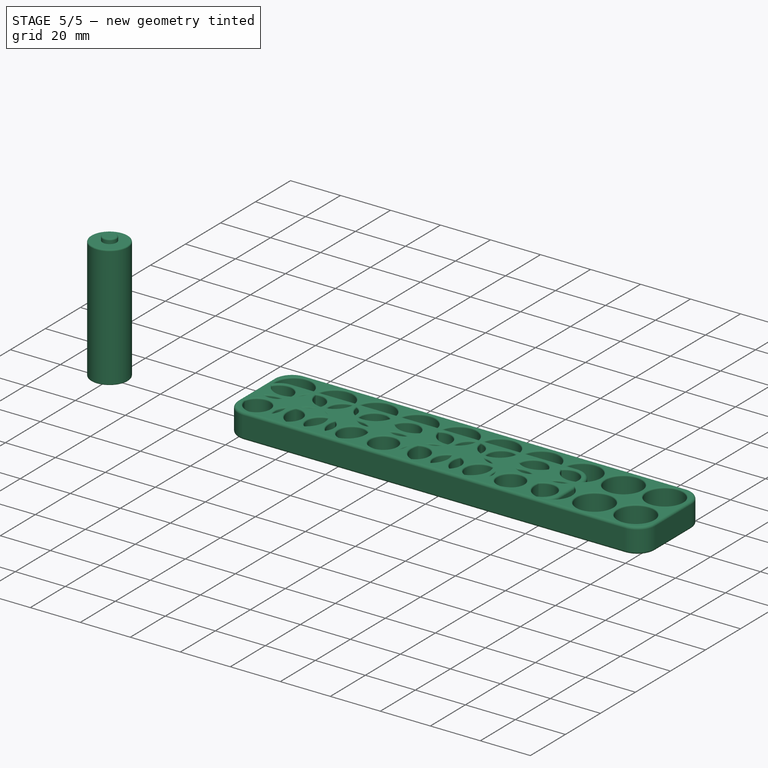
[diagram: stage 5 of 5 — iso view after this stage's code; geometry added in this stage tinted green]
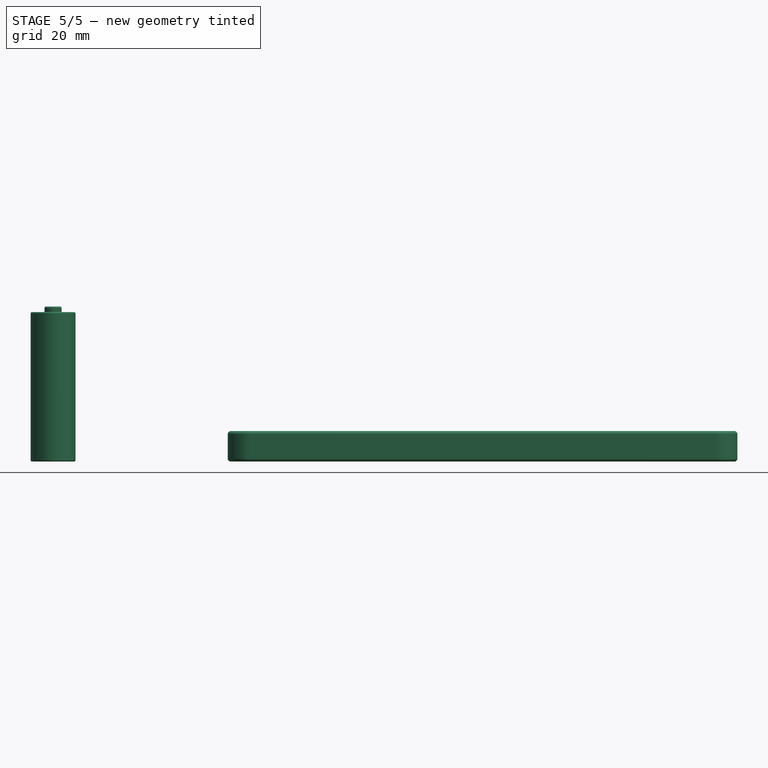
[diagram: stage 5 of 5 — front view after this stage's code; geometry added in this stage tinted green]
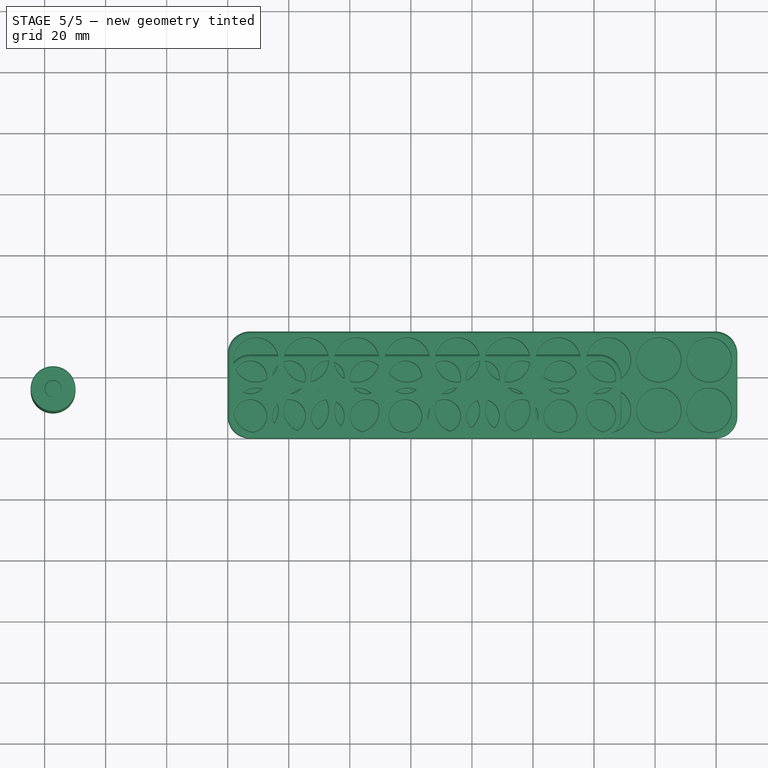
[diagram: stage 5 of 5 — top view after this stage's code; geometry added in this stage tinted green]
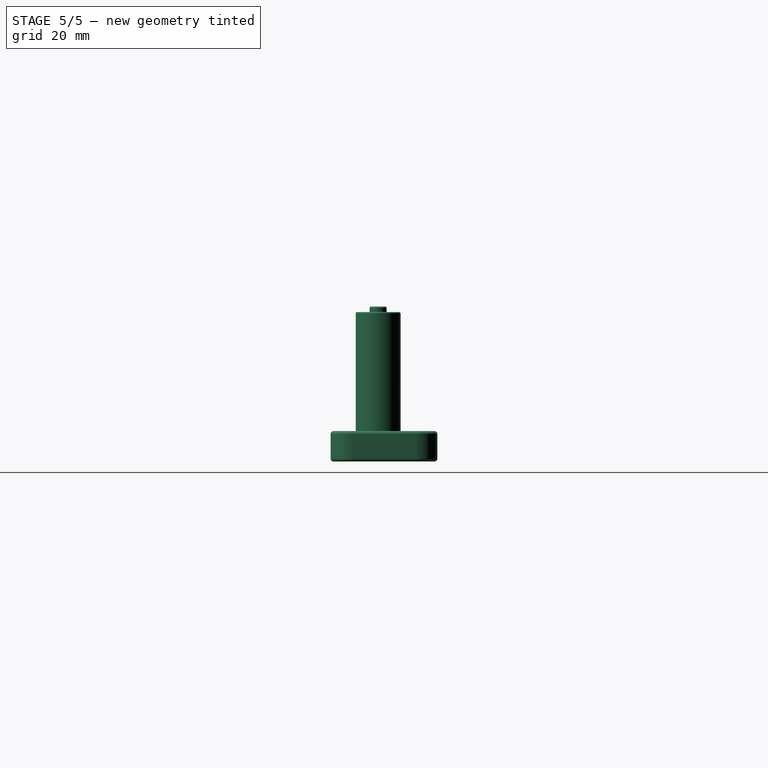
[diagram: stage 5 of 5 — right view after this stage's code; geometry added in this stage tinted green]
FEATURE [PartDesign::Fillet] Fillet
  Base = -> Pad001 [Edge6]
  BaseFeature = -> Pad001
  Radius = 0.5
  SupportTransform = false
  UseAllEdges = false
FEATURE [PartDesign::Fillet] Fillet001
  Base = -> Fillet [Edge6]
  BaseFeature = -> Fillet
  Radius = 0.5
  SupportTransform = false
  UseAllEdges = false
FEATURE [PartDesign::Fillet] Fillet002
  Base = -> Fillet001 [Edge8]
  BaseFeature = -> Fillet001
  Radius = 0.5
  SupportTransform = false
  UseAllEdges = false
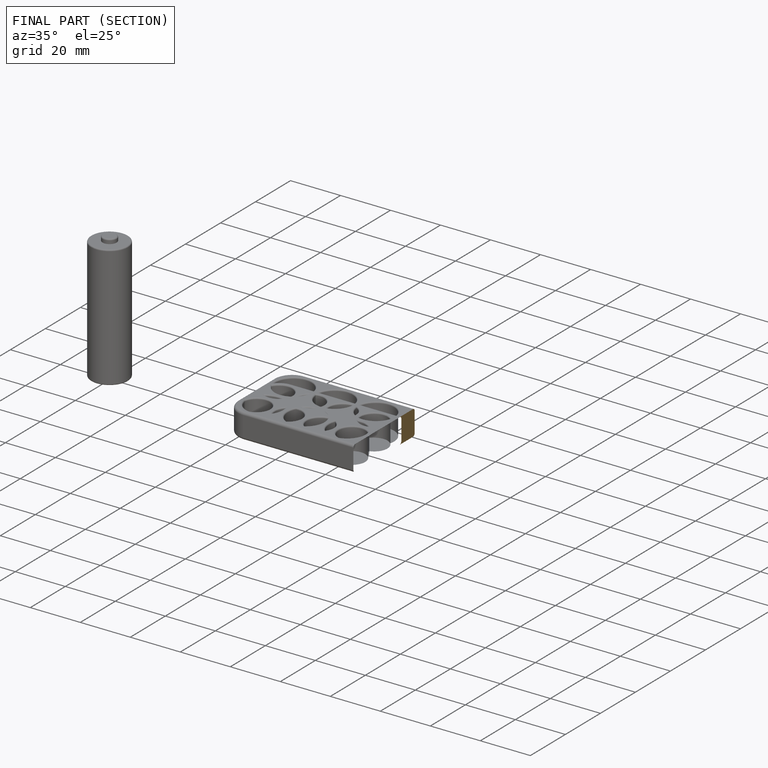
[diagram: finished part — half-section view (interior)]
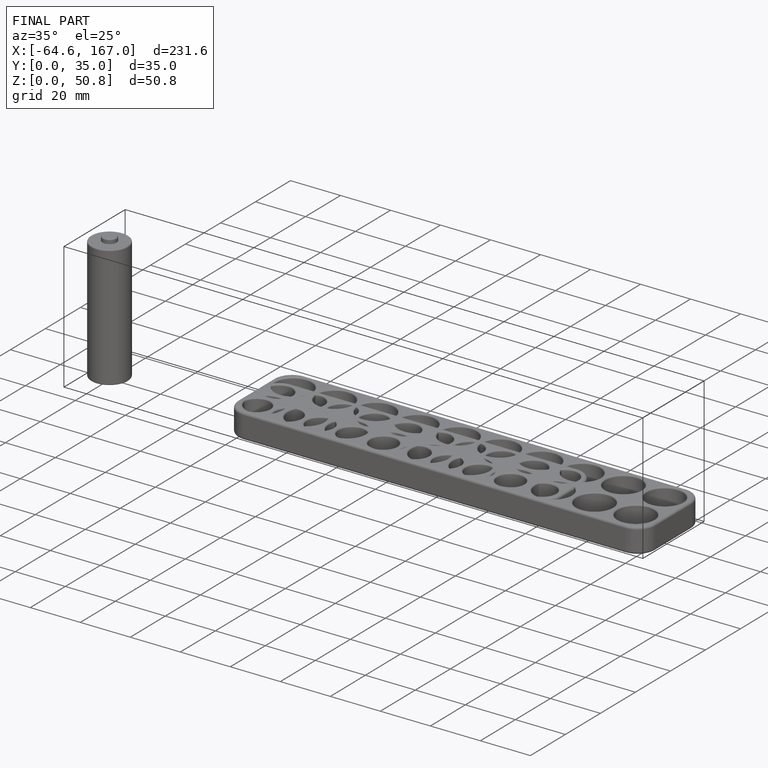
[diagram: finished part — iso view with bounding-box wireframe]
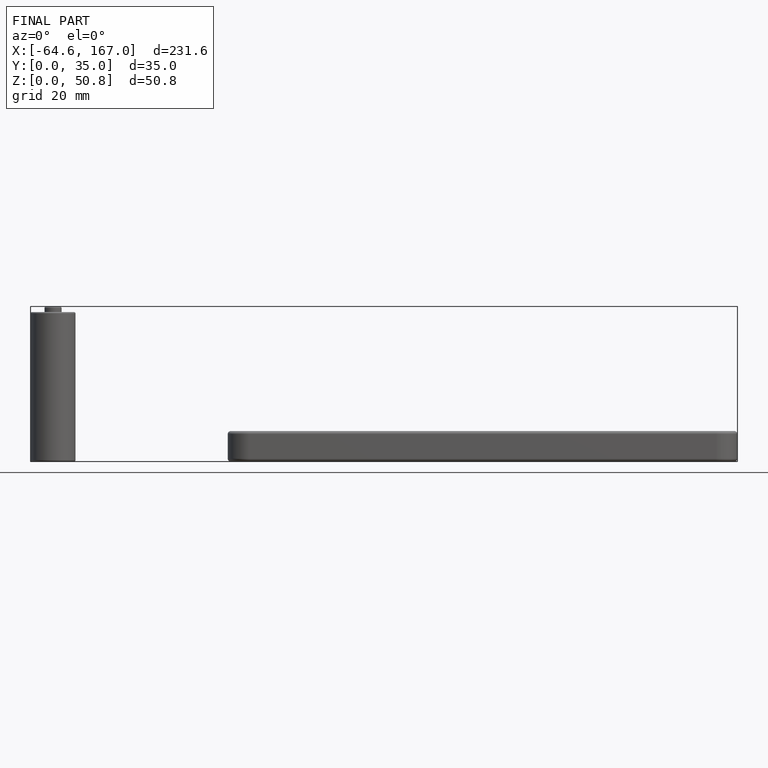
[diagram: finished part — front view with bounding-box wireframe]
